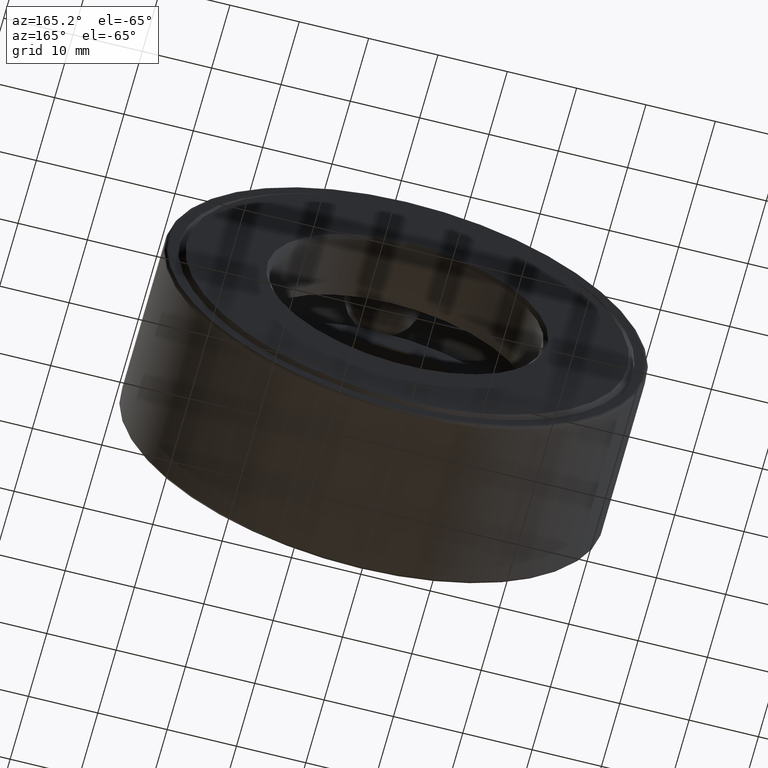
[diagram: clean part render]
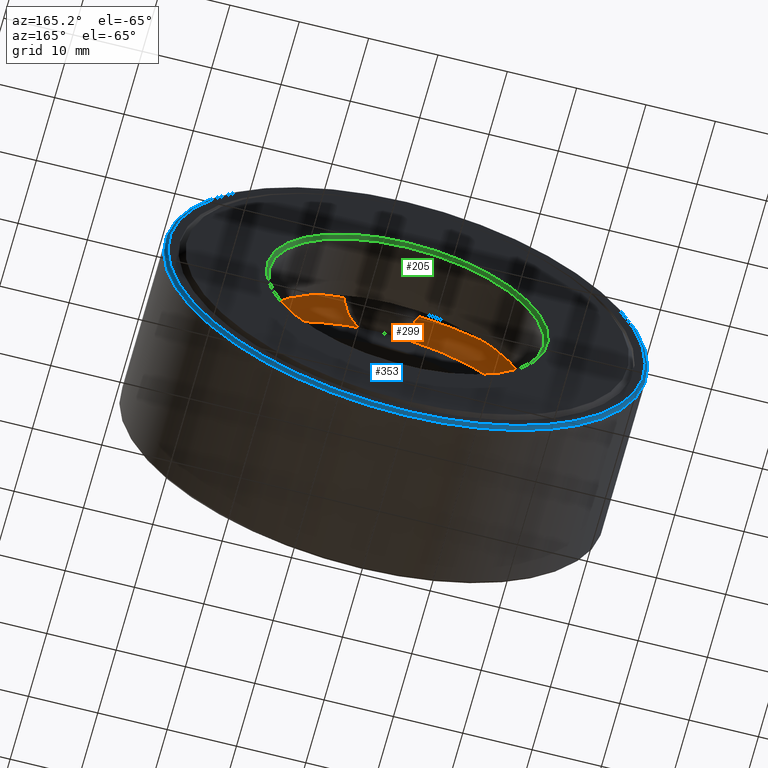
[diagram: same view with three faces highlighted in distinct colors, each labeled with its STEP entity id]
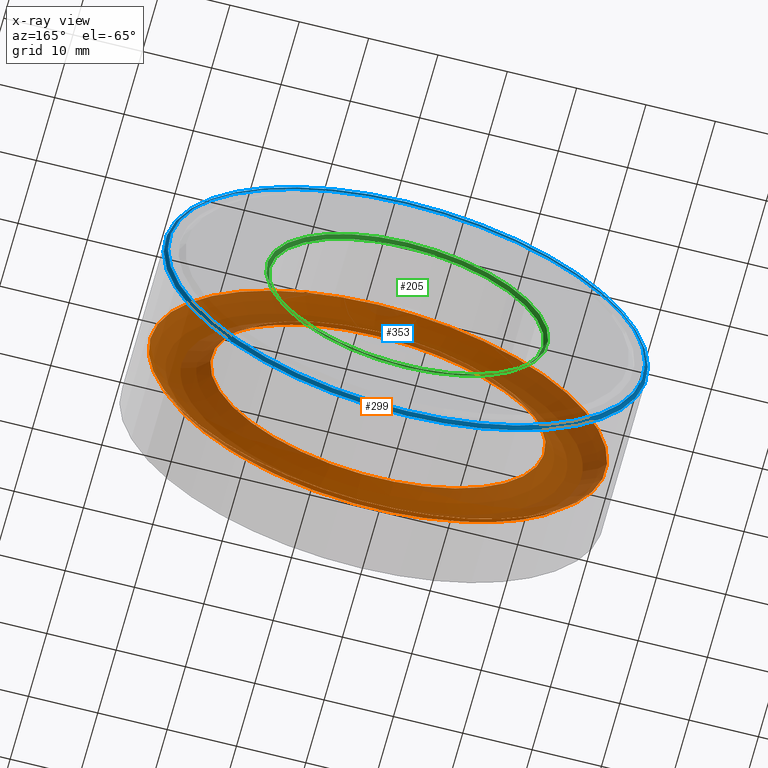
[diagram: x-ray of the same camera — body ghosted, the three highlighted faces saturated]
A machine part, auxiliary view with three faces highlighted in distinct colors.
The next image is the same camera in x-ray (body ghosted, the three faces saturated) — at least one of them is partly hidden behind the body in this view.
Their STEP definitions:

[orange] entity #299 — the highlighted toroidal blend (fillet) surface has major radius 28.6321 mm and minor (blend) radius 5.5562 mm.
#18 = EDGE_LOOP ( 'NONE', ( #280 ) ) ;
#55 = FACE_OUTER_BOUND ( 'NONE', #18, .T. ) ;
#79 = DIRECTION ( 'NONE',  ( -0.0000000000000000000, 1.000000000000000000, -0.0000000000000000000 ) ) ;
#151 = AXIS2_PLACEMENT_3D ( 'NONE', #462, #79, #458 ) ;
#159 = AXIS2_PLACEMENT_3D ( 'NONE', #174, #263, #274 ) ;
#174 = CARTESIAN_POINT ( 'NONE',  ( 0.0000000000000000000, 0.3687499999999999700, 0.0000000000000000000 ) ) ;
#181 = DIRECTION ( 'NONE',  ( 0.0000000000000000000, 0.0000000000000000000, 1.000000000000000000 ) ) ;
#189 = CARTESIAN_POINT ( 'NONE',  ( 0.0000000000000000000, 0.3687499999999999700, 0.9522500000000001500 ) ) ;
#199 = VERTEX_POINT ( 'NONE', #602 ) ;
#242 = ORIENTED_EDGE ( 'NONE', *, *, #445, .T. ) ;
#247 = VERTEX_POINT ( 'NONE', #189 ) ;
#263 = DIRECTION ( 'NONE',  ( -0.0000000000000000000, 1.000000000000000000, -0.0000000000000000000 ) ) ;
#274 = DIRECTION ( 'NONE',  ( 0.0000000000000000000, 0.0000000000000000000, 1.000000000000000000 ) ) ;
#275 = FACE_OUTER_BOUND ( 'NONE', #562, .T. ) ;
#280 = ORIENTED_EDGE ( 'NONE', *, *, #584, .F. ) ;
#299 = ADVANCED_FACE ( 'NONE', ( #55, #275 ), #459, .F. ) ;
#341 = CIRCLE ( 'NONE', #369, 0.9522500000000001500 ) ;
#369 = AXIS2_PLACEMENT_3D ( 'NONE', #518, #428, #181 ) ;
#428 = DIRECTION ( 'NONE',  ( -0.0000000000000000000, 1.000000000000000000, -0.0000000000000000000 ) ) ;
#445 = EDGE_CURVE ( 'NONE', #199, #199, #477, .T. ) ;
#458 = DIRECTION ( 'NONE',  ( 0.0000000000000000000, 0.0000000000000000000, 1.000000000000000000 ) ) ;
#459 = TOROIDAL_SURFACE ( 'NONE', #151, 1.127250000000000100, 0.2187499999999999200 ) ;
#462 = CARTESIAN_POINT ( 'NONE',  ( 0.0000000000000000000, 0.5000000000000000000, 0.0000000000000000000 ) ) ;
#477 = CIRCLE ( 'NONE', #159, 1.302250000000000100 ) ;
#518 = CARTESIAN_POINT ( 'NONE',  ( 0.0000000000000000000, 0.3687499999999999700, 0.0000000000000000000 ) ) ;
#562 = EDGE_LOOP ( 'NONE', ( #242 ) ) ;
#584 = EDGE_CURVE ( 'NONE', #247, #247, #341, .T. ) ;
#602 = CARTESIAN_POINT ( 'NONE',  ( 0.0000000000000000000, 0.3687499999999999700, 1.302250000000000100 ) ) ;

[blue] entity #353 — the highlighted toroidal blend (fillet) surface has major radius 34.417 mm and minor (blend) radius 0.508 mm.
#7 = TOROIDAL_SURFACE ( 'NONE', #483, 1.355000000000000000, 0.02000000000000005900 ) ;
#26 = DIRECTION ( 'NONE',  ( -0.0000000000000000000, 1.000000000000000000, -0.0000000000000000000 ) ) ;
#34 = CARTESIAN_POINT ( 'NONE',  ( 0.0000000000000000000, 0.9649999999999999700, 0.0000000000000000000 ) ) ;
#37 = DIRECTION ( 'NONE',  ( 0.0000000000000000000, 0.0000000000000000000, 1.000000000000000000 ) ) ;
#42 = ORIENTED_EDGE ( 'NONE', *, *, #315, .T. ) ;
#84 = DIRECTION ( 'NONE',  ( -0.0000000000000000000, 1.000000000000000000, -0.0000000000000000000 ) ) ;
#104 = FACE_OUTER_BOUND ( 'NONE', #319, .T. ) ;
#116 = CARTESIAN_POINT ( 'NONE',  ( 0.0000000000000000000, 0.9649999999999999700, 0.0000000000000000000 ) ) ;
#121 = DIRECTION ( 'NONE',  ( -0.0000000000000000000, 1.000000000000000000, -0.0000000000000000000 ) ) ;
#136 = CARTESIAN_POINT ( 'NONE',  ( 0.0000000000000000000, 0.9849999999999999900, 1.355000000000000000 ) ) ;
#156 = AXIS2_PLACEMENT_3D ( 'NONE', #376, #121, #37 ) ;
#160 = DIRECTION ( 'NONE',  ( 0.0000000000000000000, 0.0000000000000000000, 1.000000000000000000 ) ) ;
#195 = CIRCLE ( 'NONE', #374, 1.375000000000000000 ) ;
#233 = FACE_OUTER_BOUND ( 'NONE', #550, .T. ) ;
#239 = VERTEX_POINT ( 'NONE', #136 ) ;
#287 = CARTESIAN_POINT ( 'NONE',  ( 0.0000000000000000000, 0.9649999999999999700, 1.375000000000000000 ) ) ;
#315 = EDGE_CURVE ( 'NONE', #317, #317, #195, .T. ) ;
#317 = VERTEX_POINT ( 'NONE', #287 ) ;
#319 = EDGE_LOOP ( 'NONE', ( #531 ) ) ;
#353 = ADVANCED_FACE ( 'NONE', ( #104, #233 ), #7, .T. ) ;
#374 = AXIS2_PLACEMENT_3D ( 'NONE', #34, #84, #160 ) ;
#376 = CARTESIAN_POINT ( 'NONE',  ( 0.0000000000000000000, 0.9849999999999999900, 0.0000000000000000000 ) ) ;
#406 = EDGE_CURVE ( 'NONE', #239, #239, #501, .T. ) ;
#483 = AXIS2_PLACEMENT_3D ( 'NONE', #116, #26, #509 ) ;
#501 = CIRCLE ( 'NONE', #156, 1.355000000000000000 ) ;
#509 = DIRECTION ( 'NONE',  ( 0.0000000000000000000, 0.0000000000000000000, 1.000000000000000000 ) ) ;
#531 = ORIENTED_EDGE ( 'NONE', *, *, #406, .F. ) ;
#550 = EDGE_LOOP ( 'NONE', ( #42 ) ) ;

[green] entity #205 — the highlighted conical surface has half-angle 45 deg.
#48 = FACE_BOUND ( 'NONE', #112, .T. ) ;
#73 = DIRECTION ( 'NONE',  ( -0.0000000000000000000, 1.000000000000000000, -0.0000000000000000000 ) ) ;
#83 = AXIS2_PLACEMENT_3D ( 'NONE', #257, #255, #412 ) ;
#85 = CIRCLE ( 'NONE', #305, 0.7812500000000000000 ) ;
#112 = EDGE_LOOP ( 'NONE', ( #142 ) ) ;
#142 = ORIENTED_EDGE ( 'NONE', *, *, #175, .F. ) ;
#167 = FACE_OUTER_BOUND ( 'NONE', #345, .T. ) ;
#170 = DIRECTION ( 'NONE',  ( 0.0000000000000000000, 0.0000000000000000000, 1.000000000000000000 ) ) ;
#175 = EDGE_CURVE ( 'NONE', #496, #496, #85, .T. ) ;
#182 = EDGE_CURVE ( 'NONE', #349, #349, #591, .T. ) ;
#205 = ADVANCED_FACE ( 'NONE', ( #167, #48 ), #431, .F. ) ;
#255 = DIRECTION ( 'NONE',  ( -0.0000000000000000000, 1.000000000000000000, -0.0000000000000000000 ) ) ;
#257 = CARTESIAN_POINT ( 'NONE',  ( 0.0000000000000000000, 1.000000000000000200, 0.0000000000000000000 ) ) ;
#289 = ORIENTED_EDGE ( 'NONE', *, *, #182, .T. ) ;
#305 = AXIS2_PLACEMENT_3D ( 'NONE', #542, #73, #310 ) ;
#310 = DIRECTION ( 'NONE',  ( 0.0000000000000000000, 0.0000000000000000000, 1.000000000000000000 ) ) ;
#345 = EDGE_LOOP ( 'NONE', ( #289 ) ) ;
#349 = VERTEX_POINT ( 'NONE', #388 ) ;
#388 = CARTESIAN_POINT ( 'NONE',  ( 0.0000000000000000000, 1.000000000000000200, 0.8012500000000002400 ) ) ;
#408 = DIRECTION ( 'NONE',  ( -0.0000000000000000000, 1.000000000000000000, -0.0000000000000000000 ) ) ;
#412 = DIRECTION ( 'NONE',  ( 0.0000000000000000000, 0.0000000000000000000, 1.000000000000000000 ) ) ;
#431 = CONICAL_SURFACE ( 'NONE', #592, 0.7812500000000000000, 0.7853981633974380600 ) ;
#465 = CARTESIAN_POINT ( 'NONE',  ( 0.0000000000000000000, 0.9799999999999995400, 0.0000000000000000000 ) ) ;
#496 = VERTEX_POINT ( 'NONE', #519 ) ;
#519 = CARTESIAN_POINT ( 'NONE',  ( 0.0000000000000000000, 0.9799999999999995400, 0.7812500000000000000 ) ) ;
#542 = CARTESIAN_POINT ( 'NONE',  ( 0.0000000000000000000, 0.9799999999999995400, 0.0000000000000000000 ) ) ;
#591 = CIRCLE ( 'NONE', #83, 0.8012500000000002400 ) ;
#592 = AXIS2_PLACEMENT_3D ( 'NONE', #465, #408, #170 ) ;